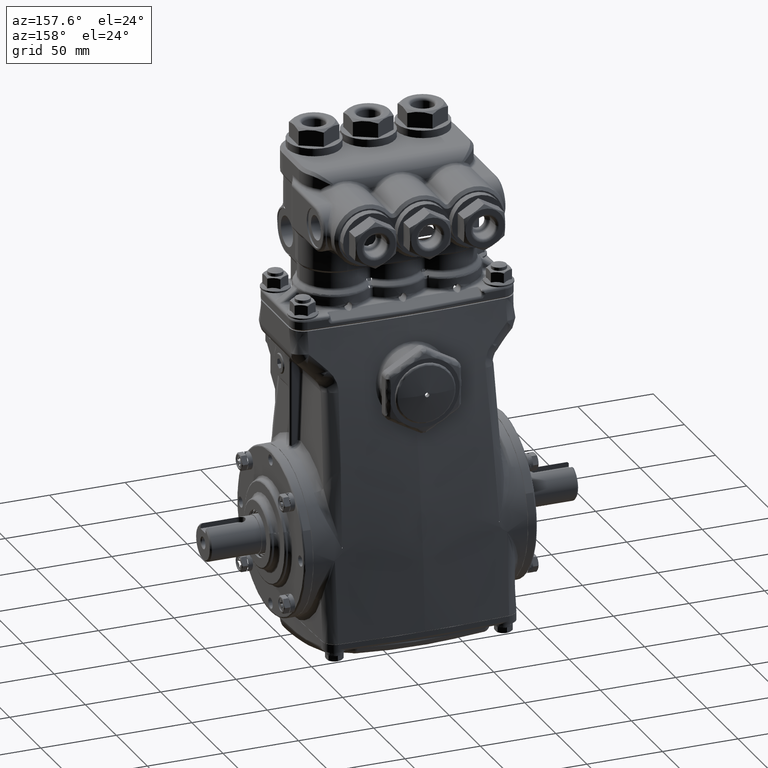
[diagram: clean part render]
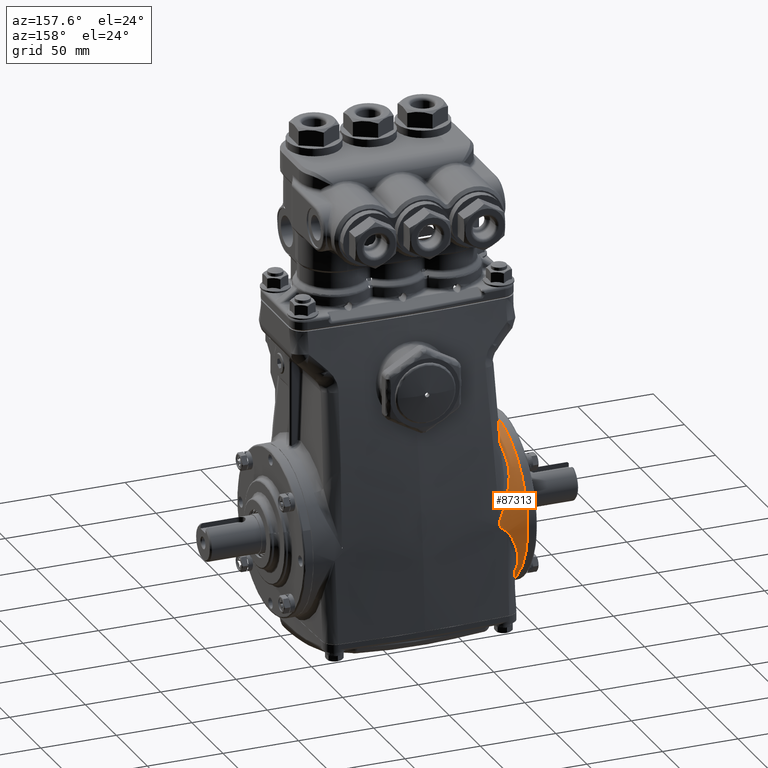
[diagram: same view with one face highlighted and labeled with its STEP entity id]
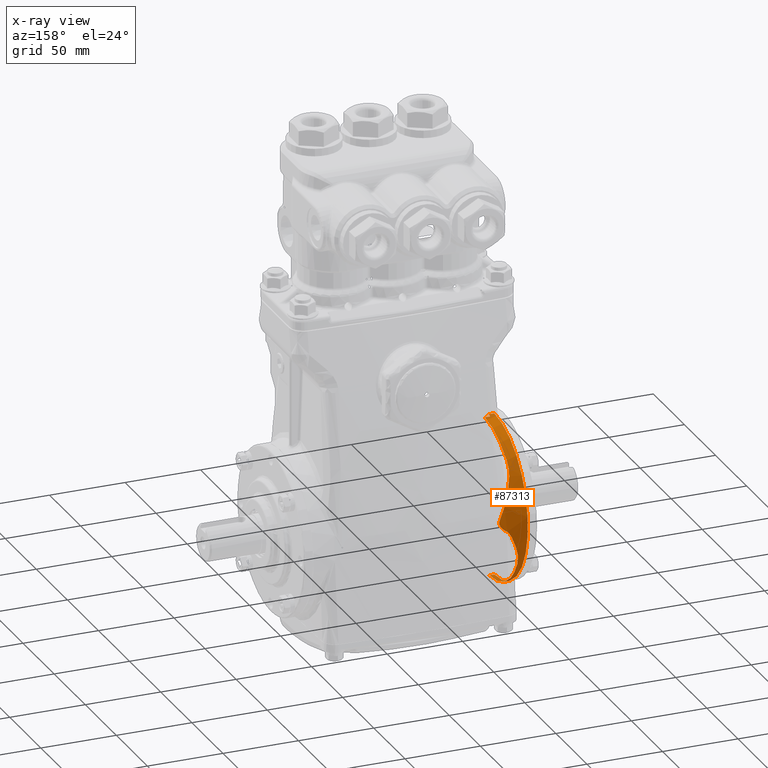
[diagram: x-ray of the same camera — body ghosted, the highlighted face saturated]
A machine part, auxiliary view. The second image highlights one B-rep face of the part: STEP entity #87313.
The next image is the same camera in x-ray: the body ghosted, the highlighted face saturated — about 3% of this face is hidden behind the body in this view.
In plain terms, the highlighted conical surface has half-angle 1.432 deg.
Its self-contained STEP definition (entity closure, byte-faithful):
#49 = CARTESIAN_POINT ( 'NONE',  ( -2.162952424221477266, 2.083565017657989404, 0.4968951659755478367 ) ) ;
#611 = CARTESIAN_POINT ( 'NONE',  ( -2.318538311934954521, 1.973070316823980708, 0.8319326649172116284 ) ) ;
#1801 = CARTESIAN_POINT ( 'NONE',  ( -2.632625855243927671, 1.890380042259838245, -0.9828211631979826279 ) ) ;
#2371 = CARTESIAN_POINT ( 'NONE',  ( -2.289558517188866826, 2.137737940646050383, -0.06239020845379154162 ) ) ;
#2604 = CARTESIAN_POINT ( 'NONE',  ( -2.163951034222194814, 2.141484851680152346, 0.03630347271766833778 ) ) ;
#3164 = CARTESIAN_POINT ( 'NONE',  ( -2.200946752931430161, 2.140926309954696460, 0.006560008790992016663 ) ) ;
#4280 = CARTESIAN_POINT ( 'NONE',  ( -2.070415895278807650, 2.139355094043322580, 0.1433268698002481134 ) ) ;
#4567 = ORIENTED_EDGE ( 'NONE', *, *, #29664, .F. ) ;
#5577 = EDGE_CURVE ( 'NONE', #27048, #43719, #66043, .T. ) ;
#6243 = EDGE_CURVE ( 'NONE', #43719, #89067, #45423, .T. ) ;
#6876 = CARTESIAN_POINT ( 'NONE',  ( -2.512531095173924811, 1.381143595791431977, 1.630352022535442202 ) ) ;
#8578 = CARTESIAN_POINT ( 'NONE',  ( -2.496378292944292365, 0.5612928552407832061, 2.059250695251111374 ) ) ;
#8700 = CARTESIAN_POINT ( 'NONE',  ( -2.551775862697584163, 2.037565885133518329, -0.6294967611463615498 ) ) ;
#9273 = CARTESIAN_POINT ( 'NONE',  ( -2.253474384794850849, 2.139335067782699440, -0.02897014105711796794 ) ) ;
#9309 = ORIENTED_EDGE ( 'NONE', *, *, #66327, .F. ) ;
#11226 = CARTESIAN_POINT ( 'NONE',  ( -2.151930763831655824, 2.141590353209538833, 0.04661990962176179587 ) ) ;
#13088 = CARTESIAN_POINT ( 'NONE',  ( -2.635827106511313023, 1.180994845869163694E-16, 2.129971031623349553 ) ) ;
#13474 = CARTESIAN_POINT ( 'NONE',  ( -2.051070710530038532, 2.128999075677172392, 0.2582607092334724963 ) ) ;
#14318 = CARTESIAN_POINT ( 'NONE',  ( -2.672765217870545218, 0.3692536697095555320, -2.097297288627426592 ) ) ;
#15444 = CARTESIAN_POINT ( 'NONE',  ( -2.669889708392947814, 0.6394416007698479065, -2.032928589424304544 ) ) ;
#16139 = ORIENTED_EDGE ( 'NONE', *, *, #31603, .T. ) ;
#16197 = CARTESIAN_POINT ( 'NONE',  ( -2.384739640711305952, 1.892210327611903553, 0.9933383953743212258 ) ) ;
#16763 = CARTESIAN_POINT ( 'NONE',  ( -2.059568972017451927, 2.125980063762961336, 0.2807006665907317289 ) ) ;
#17328 = CARTESIAN_POINT ( 'NONE',  ( -2.515788031420507664, 1.471742056733628345, 1.543873935989515500 ) ) ;
#17806 = CARTESIAN_POINT ( 'NONE',  ( -2.494717321873239690, 0.3786866166934474975, 2.103354497728250561 ) ) ;
#18278 = LINE ( 'NONE', #63848, #49269 ) ;
#19210 = CARTESIAN_POINT ( 'NONE',  ( -2.637595659439549323, 1.842469967156803001, -1.068593768694690249 ) ) ;
#19241 = FACE_OUTER_BOUND ( 'NONE', #82485, .T. ) ;
#19644 = CARTESIAN_POINT ( 'NONE',  ( -2.389972388588445185, 2.123773769501480668, -0.2303563304776941323 ) ) ;
#21598 = CARTESIAN_POINT ( 'NONE',  ( -2.049233747381173476, 2.135055246015371999, 0.2031275748101670775 ) ) ;
#22027 = EDGE_CURVE ( 'NONE', #76420, #31883, #111137, .T. ) ;
#22164 = CARTESIAN_POINT ( 'NONE',  ( -2.117602679647121011, 2.141476616385341369, 0.07977551856538772634 ) ) ;
#22996 = CARTESIAN_POINT ( 'NONE',  ( -2.645611163643341257, 1.628722084624372402, -1.373017620904652070 ) ) ;
#23572 = CARTESIAN_POINT ( 'NONE',  ( -2.665552481601454637, 0.8971246641472204741, -1.931564028516423281 ) ) ;
#24772 = CARTESIAN_POINT ( 'NONE',  ( -2.498518163271897130, 0.7385959817677200112, 2.002430845912647417 ) ) ;
#24869 = CARTESIAN_POINT ( 'NONE',  ( -2.203292787143160236, 2.060377818088013235, 0.5819543737818714257 ) ) ;
#25448 = CARTESIAN_POINT ( 'NONE',  ( -2.080219982731875916, 2.119245663976616623, 0.3242887612451490487 ) ) ;
#26580 = CARTESIAN_POINT ( 'NONE',  ( -2.517494023435597583, 1.519197775619398838, 1.498576480357006968 ) ) ;
#26608 = CARTESIAN_POINT ( 'NONE',  ( -2.356271691135446655, 2.130658987081584854, -0.1653658590589018873 ) ) ;
#26736 = DIRECTION ( 'NONE',  ( 0.000000000000000000, 5.544652149419485530E-17, 1.000000000000000000 ) ) ;
#27048 = VERTEX_POINT ( 'NONE', #46822 ) ;
#28335 = CARTESIAN_POINT ( 'NONE',  ( -2.400645123650289037, 2.121016825696898422, -0.2522796489681907173 ) ) ;
#28568 = CARTESIAN_POINT ( 'NONE',  ( -2.128748904580759049, 2.141586583927418630, 0.06836013753219859213 ) ) ;
#29664 = EDGE_CURVE ( 'NONE', #89067, #79496, #85354, .T. ) ;
#31603 = EDGE_CURVE ( 'NONE', #31883, #79496, #94869, .T. ) ;
#31883 = VERTEX_POINT ( 'NONE', #91935 ) ;
#32790 = CARTESIAN_POINT ( 'NONE',  ( -2.674213100711846813, 0.09220445916533134834, -2.129011245134119878 ) ) ;
#33429 = CARTESIAN_POINT ( 'NONE',  ( -2.502239974578637671, 0.9649577718154701556, 1.903606377951276629 ) ) ;
#33526 = CARTESIAN_POINT ( 'NONE',  ( -2.189956210657556301, 2.068489951388318815, 0.5537197176874880666 ) ) ;
#33981 = CARTESIAN_POINT ( 'NONE',  ( -2.500193927158772311, 0.8539035844348655813, 1.957934506992622836 ) ) ;
#35133 = CARTESIAN_POINT ( 'NONE',  ( -2.494027162866752523, 0.2561653564590450904, 2.121680388083044377 ) ) ;
#35259 = CARTESIAN_POINT ( 'NONE',  ( -2.590432388134308983, 1.989990240059234861, -0.7629667914849970201 ) ) ;
#35273 = ORIENTED_EDGE ( 'NONE', *, *, #55941, .F. ) ;
#37578 = B_SPLINE_CURVE_WITH_KNOTS ( 'NONE', 3,
 ( #40854, #32790, #59327, #85177, #14318, #94406, #50096, #15444, #101916, #111103, #23572, #39711, #85726, #103614, #67948, #76562, #74875, #110542, #111669, #68515, #92717, #22996, #58758, #49527, #103052, #109979 ),
 .UNSPECIFIED., .F., .F.,
 ( 4, 2, 2, 2, 2, 2, 2, 2, 2, 2, 2, 2, 4 ),
 ( 0.05676191307346302450, 0.06385649279245729504, 0.06740378265195443030, 0.07095107251145155169, 0.07804565223044582223, 0.08159294208994294362, 0.08514023194944006501, 0.09223481166843429391, 0.09932939138742852281, 0.1011030363171770696, 0.1028766812469256442, 0.1064239711064227656, 0.1135185508254169667 ),
 .UNSPECIFIED. ) ;
#37595 = AXIS2_PLACEMENT_3D ( 'NONE', #82530, #65867, #73922 ) ;
#39436 = CARTESIAN_POINT ( 'NONE',  ( -2.053009082777898620, 2.127984562748498121, 0.2659864047022593159 ) ) ;
#39711 = CARTESIAN_POINT ( 'NONE',  ( -2.663862085655700263, 0.9805955468574142353, -1.890604300765717394 ) ) ;
#40854 = CARTESIAN_POINT ( 'NONE',  ( -2.674213100711848590, -4.728579433848398680E-16, -2.129011245134118990 ) ) ;
#42629 = CARTESIAN_POINT ( 'NONE',  ( -2.504496908197115790, 1.073589570473952204, 1.843678885738478934 ) ) ;
#42871 = EDGE_CURVE ( 'NONE', #77149, #60144, #112153, .T. ) ;
#43286 = CARTESIAN_POINT ( 'NONE',  ( -2.066455995131287082, 2.123833213565636147, 0.2952517565246652320 ) ) ;
#43719 = VERTEX_POINT ( 'NONE', #93044 ) ;
#44330 = CARTESIAN_POINT ( 'NONE',  ( -2.506338786346071767, 1.153408163138216924, 1.794772379993768041 ) ) ;
#44457 = CARTESIAN_POINT ( 'NONE',  ( -2.264018022240619210, 2.138978747957120063, -0.03581326159110850837 ) ) ;
#44630 = DIRECTION ( 'NONE',  ( 1.000000000000000000, 0.000000000000000000, -4.382719174871368785E-18 ) ) ;
#45423 = B_SPLINE_CURVE_WITH_KNOTS ( 'NONE', 3,
 ( #112958, #16763, #43286, #25448, #87620, #105497, #53118, #79556, #49, #33526, #24869, #78431, #611, #16197, #51399, #87035, #70930, #88199, #68686, #96258, #103774, #86484, #26580, #17328 ),
 .UNSPECIFIED., .F., .F.,
 ( 4, 2, 2, 2, 2, 2, 2, 2, 2, 2, 2, 4 ),
 ( 0.0005242676182009582252, 0.001761302265535195141, 0.002998336912869430104, 0.005472406207537893960, 0.007946475502206357816, 0.01042054479687481994, 0.02031682197554868924, 0.02526496056488561695, 0.02773902985955408948, 0.03021309915422255854, 0.03516123774355950360, 0.04010937633289644866 ),
 .UNSPECIFIED. ) ;
#46198 = CARTESIAN_POINT ( 'NONE',  ( -2.297234584015314773, 2.137243118489835947, -0.07214601117896257687 ) ) ;
#46427 = CARTESIAN_POINT ( 'NONE',  ( -2.047942761720248583, 2.132668299759482355, 0.2267129716406532658 ) ) ;
#46822 = CARTESIAN_POINT ( 'NONE',  ( -2.253474384794850849, 2.139335067782699440, -0.02897014105711796794 ) ) ;
#46879 = DIRECTION ( 'NONE',  ( -1.000000000000000000, 0.000000000000000000, 4.382719174871368785E-18 ) ) ;
#47551 = CARTESIAN_POINT ( 'NONE',  ( -2.049675535348338684, 2.129977349496798400, 0.2503680299623711192 ) ) ;
#48170 = CARTESIAN_POINT ( 'NONE',  ( -2.515788031420507664, 1.471742056733628345, 1.543873935989515500 ) ) ;
#49269 = VECTOR ( 'NONE', #81634, 39.37007874015748143 ) ;
#49436 = CARTESIAN_POINT ( 'NONE',  ( -2.635827106511313023, 0.1328843788819236149, 2.125821802833859575 ) ) ;
#49527 = CARTESIAN_POINT ( 'NONE',  ( -2.641456466957074145, 1.743588930305946194, -1.226671725202621799 ) ) ;
#50096 = CARTESIAN_POINT ( 'NONE',  ( -2.671478390218202659, 0.5055604446529387008, -2.068700662797995360 ) ) ;
#50731 = CARTESIAN_POINT ( 'NONE',  ( -2.497029492486315672, 0.6211392241596027652, 2.041959402627709252 ) ) ;
#51290 = CARTESIAN_POINT ( 'NONE',  ( -2.503915078908877323, 1.046633739599244439, 1.859127957345694471 ) ) ;
#51399 = CARTESIAN_POINT ( 'NONE',  ( -2.405440990237039944, 1.862727010143194972, 1.046630795474951414 ) ) ;
#53118 = CARTESIAN_POINT ( 'NONE',  ( -2.121747569332262273, 2.103271559763260523, 0.4108664398746768032 ) ) ;
#53722 = CARTESIAN_POINT ( 'NONE',  ( -2.571997670785415746, 2.014805814908271042, -0.6961948022735288122 ) ) ;
#54862 = CARTESIAN_POINT ( 'NONE',  ( -2.318995028254476232, 2.135545963376624723, -0.1021296468091160703 ) ) ;
#55115 = CARTESIAN_POINT ( 'NONE',  ( -2.087339423217606349, 2.140568111131683438, 0.1163468886655521228 ) ) ;
#55941 = EDGE_CURVE ( 'NONE', #96630, #85163, #37578, .T. ) ;
#57357 = CARTESIAN_POINT ( 'NONE',  ( -2.226839771930154033, 2.140235178456946663, -0.01168351989360031859 ) ) ;
#57838 = ORIENTED_EDGE ( 'NONE', *, *, #64034, .T. ) ;
#58306 = ORIENTED_EDGE ( 'NONE', *, *, #67530, .F. ) ;
#58758 = CARTESIAN_POINT ( 'NONE',  ( -2.644558561933787022, 1.658359136561663227, -1.337106508342973399 ) ) ;
#59327 = CARTESIAN_POINT ( 'NONE',  ( -2.673938078400615037, 0.1844786151598803436, -2.123054379433383154 ) ) ;
#59949 = CARTESIAN_POINT ( 'NONE',  ( -2.505708188655874746, 1.126954218850235723, 1.811516318501217304 ) ) ;
#60144 = VERTEX_POINT ( 'NONE', #97500 ) ;
#62362 = CARTESIAN_POINT ( 'NONE',  ( -2.596079569813533272, 1.981135160959059283, -0.7852977795466467015 ) ) ;
#62493 = CARTESIAN_POINT ( 'NONE',  ( -2.795275590551181022, -6.065921084684207584E-32, 0.000000000000000000 ) ) ;
#62938 = CARTESIAN_POINT ( 'NONE',  ( -2.636609844212819631, 1.867263793136128891, -1.025893370523177861 ) ) ;
#63506 = CARTESIAN_POINT ( 'NONE',  ( -2.637595659439549323, 1.842469967156803001, -1.068593768694690249 ) ) ;
#63848 = CARTESIAN_POINT ( 'NONE',  ( -2.795275590551181022, 1.178784315230913598E-16, 2.125984251968504157 ) ) ;
#64034 = EDGE_CURVE ( 'NONE', #77149, #76420, #18278, .T. ) ;
#64079 = CARTESIAN_POINT ( 'NONE',  ( -2.620134399658587299, 1.933471950044749921, -0.8958186313543919921 ) ) ;
#64311 = CARTESIAN_POINT ( 'NONE',  ( -2.096922746239215929, 2.140966567908245466, 0.1037533168227870589 ) ) ;
#65867 = DIRECTION ( 'NONE',  ( -1.000000000000000000, 0.000000000000000000, 4.382719174871368785E-18 ) ) ;
#66043 = B_SPLINE_CURVE_WITH_KNOTS ( 'NONE', 3,
 ( #101086, #57357, #3164, #2604, #11226, #28568, #22164, #64311, #55115, #4280, #109691, #90196, #21598, #46427, #107472, #47551, #13474, #39436 ),
 .UNSPECIFIED., .F., .F.,
 ( 4, 2, 2, 2, 2, 2, 2, 2, 4 ),
 ( 8.080798162022950091E-17, 0.002411326274356013263, 0.003616989411533987585, 0.004822652548711961473, 0.006028315685889935362, 0.007233978823067910117, 0.008439641960245885741, 0.009042473528834872251, 0.009645305097423858762 ),
 .UNSPECIFIED. ) ;
#66327 = EDGE_CURVE ( 'NONE', #85163, #27048, #93260, .T. ) ;
#66629 = CARTESIAN_POINT ( 'NONE',  ( -2.795275590551181022, -3.782364124441823362E-16, -2.125984251968504157 ) ) ;
#66726 = CARTESIAN_POINT ( 'NONE',  ( -2.541100472689935330, 0.1328896408864844447, 2.128194596234617819 ) ) ;
#67530 = EDGE_CURVE ( 'NONE', #60144, #96630, #102864, .T. ) ;
#67948 = CARTESIAN_POINT ( 'NONE',  ( -2.658219563924653972, 1.219976855289391482, -1.747725901029767215 ) ) ;
#68515 = CARTESIAN_POINT ( 'NONE',  ( -2.647743888551647995, 1.566636320473507427, -1.442810299648261241 ) ) ;
#68584 = CARTESIAN_POINT ( 'NONE',  ( -2.493737155654195625, 0.1328922655559541532, 2.129380987956658089 ) ) ;
#68686 = CARTESIAN_POINT ( 'NONE',  ( -2.467062593457126418, 1.744141122210541184, 1.230340150386247666 ) ) ;
#70398 = CARTESIAN_POINT ( 'NONE',  ( -2.460334127482243005, 2.099435925999025176, -0.3851893859959998334 ) ) ;
#70930 = CARTESIAN_POINT ( 'NONE',  ( -2.442660812316131302, 1.797348068771348784, 1.152347434477236643 ) ) ;
#70960 = CARTESIAN_POINT ( 'NONE',  ( -2.504932259691062590, 2.075235465970740822, -0.4962313523408666827 ) ) ;
#72681 = CARTESIAN_POINT ( 'NONE',  ( -2.272927073225366357, 2.138605642037588961, -0.04428091431531905320 ) ) ;
#73922 = DIRECTION ( 'NONE',  ( 0.000000000000000000, 5.544652149419485530E-17, 1.000000000000000000 ) ) ;
#74446 = VECTOR ( 'NONE', #82728, 39.37007874015748143 ) ;
#74875 = CARTESIAN_POINT ( 'NONE',  ( -2.652016088880778888, 1.436109654293630244, -1.575201717937278589 ) ) ;
#75345 = CARTESIAN_POINT ( 'NONE',  ( -2.588463789642438062, 0.1328870120019319812, 2.127008201198832715 ) ) ;
#76420 = VERTEX_POINT ( 'NONE', #13088 ) ;
#76562 = CARTESIAN_POINT ( 'NONE',  ( -2.654131374056228232, 1.366509919037226073, -1.635840865738459105 ) ) ;
#77149 = VERTEX_POINT ( 'NONE', #98968 ) ;
#78431 = CARTESIAN_POINT ( 'NONE',  ( -2.268999988163028281, 2.016935381998909982, 0.7222994757913611119 ) ) ;
#79496 = VERTEX_POINT ( 'NONE', #88211 ) ;
#79556 = CARTESIAN_POINT ( 'NONE',  ( -2.149266100056737905, 2.090535779911462111, 0.4682673622006990333 ) ) ;
#80954 = ORIENTED_EDGE ( 'NONE', *, *, #42871, .F. ) ;
#81634 = DIRECTION ( 'NONE',  ( 0.9996875574981407553, 1.385927240283195653E-18, 0.02499574730631748398 ) ) ;
#82485 = EDGE_LOOP ( 'NONE', ( #58306, #80954, #57838, #112335, #16139, #4567, #111286, #101923, #9309, #35273 ) ) ;
#82530 = CARTESIAN_POINT ( 'NONE',  ( -2.635827106511313023, -6.065921084684207584E-32, 0.000000000000000000 ) ) ;
#82728 = DIRECTION ( 'NONE',  ( 0.9996875574981407553, -4.447023433380974267E-18, -0.02499574730631749092 ) ) ;
#84519 = CARTESIAN_POINT ( 'NONE',  ( -2.493737155654195625, 0.1328922655559541532, 2.129380987956658089 ) ) ;
#85163 = VERTEX_POINT ( 'NONE', #19210 ) ;
#85177 = CARTESIAN_POINT ( 'NONE',  ( -2.673111083534315480, 0.3229975887689998104, -2.104910281018374629 ) ) ;
#85354 = B_SPLINE_CURVE_WITH_KNOTS ( 'NONE', 3,
 ( #88104, #6876, #86379, #44330, #59949, #42629, #51290, #33429, #33981, #24772, #50731, #8578, #17806, #35133, #68584 ),
 .UNSPECIFIED., .F., .F.,
 ( 4, 2, 2, 2, 1, 2, 2, 4 ),
 ( 0.000000000000000000, 0.009505825380862396173, 0.01188228172607799261, 0.01425873807129358906, 0.01901165076172478194, 0.02376456345215597829, 0.02851747614258717117, 0.03802330152344955000 ),
 .UNSPECIFIED. ) ;
#85726 = CARTESIAN_POINT ( 'NONE',  ( -2.662967077234981605, 1.021977778432640482, -1.868586286260956575 ) ) ;
#86379 = CARTESIAN_POINT ( 'NONE',  ( -2.509598941434300734, 1.283714207699584664, 1.708207320038651167 ) ) ;
#86484 = CARTESIAN_POINT ( 'NONE',  ( -2.513853585012319591, 1.563878606752129530, 1.451946259010630902 ) ) ;
#87035 = CARTESIAN_POINT ( 'NONE',  ( -2.433689668383449245, 1.814265325992785893, 1.125936763561403264 ) ) ;
#87313 = ADVANCED_FACE ( 'NONE', ( #19241 ), #107156, .T. ) ;
#87620 = CARTESIAN_POINT ( 'NONE',  ( -2.087143312717087085, 2.116805226615381397, 0.3387596182034674497 ) ) ;
#87647 = CARTESIAN_POINT ( 'NONE',  ( -2.611614131011680051, 1.953446138340607430, -0.8518894944098066579 ) ) ;
#87841 = CARTESIAN_POINT ( 'NONE',  ( -2.795275590551181022, -6.065921084684207584E-32, 0.000000000000000000 ) ) ;
#88104 = CARTESIAN_POINT ( 'NONE',  ( -2.515788031420507664, 1.471742056733628345, 1.543873935989515500 ) ) ;
#88199 = CARTESIAN_POINT ( 'NONE',  ( -2.459356786973228459, 1.762260035235645672, 1.204583766178444648 ) ) ;
#88211 = CARTESIAN_POINT ( 'NONE',  ( -2.493737155654195625, 0.1328922655559541532, 2.129380987956658089 ) ) ;
#88226 = CARTESIAN_POINT ( 'NONE',  ( -2.331842010525637665, 2.134135799984190118, -0.1229999275891138361 ) ) ;
#88801 = CARTESIAN_POINT ( 'NONE',  ( -2.431428662644409489, 2.111296897163809749, -0.3186008543163052487 ) ) ;
#89067 = VERTEX_POINT ( 'NONE', #48170 ) ;
#90196 = CARTESIAN_POINT ( 'NONE',  ( -2.052624549702108059, 2.136410755026618702, 0.1872953730394325000 ) ) ;
#91935 = CARTESIAN_POINT ( 'NONE',  ( -2.635827106511313023, 0.1328843788819236149, 2.125821802833859575 ) ) ;
#92717 = CARTESIAN_POINT ( 'NONE',  ( -2.647207998187497413, 1.582405062089980108, -1.425518607116231573 ) ) ;
#93044 = CARTESIAN_POINT ( 'NONE',  ( -2.053009082777898620, 2.127984562748498121, 0.2659864047022593159 ) ) ;
#93260 = B_SPLINE_CURVE_WITH_KNOTS ( 'NONE', 3,
 ( #63506, #62938, #1801, #64079, #87647, #62362, #35259, #98015, #53722, #8700, #99158, #70960, #106090, #70398, #96876, #88801, #107238, #28335, #19644, #105524, #26608, #88226, #54862, #46198, #2371, #72681, #44457, #9273 ),
 .UNSPECIFIED., .F., .F.,
 ( 4, 2, 2, 2, 2, 2, 2, 2, 2, 2, 2, 2, 2, 4 ),
 ( 0.000000000000000000, 0.003729478340027125426, 0.007458956680054250853, 0.009323695850067814650, 0.01118843502008137585, 0.01491791336010850171, 0.01864739170013562930, 0.02051213087014919570, 0.02237687004016275863, 0.02424160921017632503, 0.02610634838018989143, 0.02797108755020345783, 0.02890345713521023582, 0.02983582672021701035 ),
 .UNSPECIFIED. ) ;
#94406 = CARTESIAN_POINT ( 'NONE',  ( -2.671949241928070595, 0.4604519964451416758, -2.079200573250728823 ) ) ;
#94869 = B_SPLINE_CURVE_WITH_KNOTS ( 'NONE', 3,
 ( #49436, #75345, #66726, #84519 ),
 .UNSPECIFIED., .F., .F.,
 ( 4, 4 ),
 ( 0.000000000000000000, 0.003610216827647214945 ),
 .UNSPECIFIED. ) ;
#96258 = CARTESIAN_POINT ( 'NONE',  ( -2.488017827612573285, 1.688032755309610833, 1.306544832349329388 ) ) ;
#96630 = VERTEX_POINT ( 'NONE', #102688 ) ;
#96876 = CARTESIAN_POINT ( 'NONE',  ( -2.450903707374337159, 2.103626349546162011, -0.3629850883206079959 ) ) ;
#97500 = CARTESIAN_POINT ( 'NONE',  ( -2.795275590551181022, -3.799102800271908455E-16, -2.125984251968504157 ) ) ;
#98015 = CARTESIAN_POINT ( 'NONE',  ( -2.578396526791719712, 2.006815403867231229, -0.7184387052893077552 ) ) ;
#98968 = CARTESIAN_POINT ( 'NONE',  ( -2.795275590551181022, 1.178784315230913598E-16, 2.125984251968504157 ) ) ;
#99158 = CARTESIAN_POINT ( 'NONE',  ( -2.536936585567988622, 2.051127212928969712, -0.5850738871081627712 ) ) ;
#99288 = AXIS2_PLACEMENT_3D ( 'NONE', #62493, #46879, #26736 ) ;
#101086 = CARTESIAN_POINT ( 'NONE',  ( -2.253474384794850849, 2.139335067782699440, -0.02897014105711796794 ) ) ;
#101916 = CARTESIAN_POINT ( 'NONE',  ( -2.668595733800589898, 0.7267760914884860979, -2.003401781462314624 ) ) ;
#101923 = ORIENTED_EDGE ( 'NONE', *, *, #5577, .F. ) ;
#102688 = CARTESIAN_POINT ( 'NONE',  ( -2.674213100711848590, -4.728579433848398680E-16, -2.129011245134118990 ) ) ;
#102864 = LINE ( 'NONE', #66629, #74446 ) ;
#103052 = CARTESIAN_POINT ( 'NONE',  ( -2.639462562493321673, 1.795516270175573359, -1.149458317731812507 ) ) ;
#103614 = CARTESIAN_POINT ( 'NONE',  ( -2.660192766900450589, 1.143043784224609061, -1.798972107766665607 ) ) ;
#103774 = CARTESIAN_POINT ( 'NONE',  ( -2.499135386112825596, 1.648299130417571812, 1.355929305872067836 ) ) ;
#105497 = CARTESIAN_POINT ( 'NONE',  ( -2.107907215706401605, 2.109039939566985211, 0.3820906069614397604 ) ) ;
#105524 = CARTESIAN_POINT ( 'NONE',  ( -2.367778985389837665, 2.128595150432312622, -0.1869031318643764594 ) ) ;
#105705 = DIRECTION ( 'NONE',  ( 0.000000000000000000, 5.544652149419485530E-17, 1.000000000000000000 ) ) ;
#106090 = CARTESIAN_POINT ( 'NONE',  ( -2.487770655296931199, 2.085781194500540447, -0.4518101348641363479 ) ) ;
#107156 = CONICAL_SURFACE ( 'NONE', #108945, 2.125984251968504157, 0.02499835087631483571 ) ;
#107238 = CARTESIAN_POINT ( 'NONE',  ( -2.421371347913226835, 2.114780403209817194, -0.2963912768903275707 ) ) ;
#107472 = CARTESIAN_POINT ( 'NONE',  ( -2.048115291841310359, 2.131812174327038178, 0.2345886730875641479 ) ) ;
#108945 = AXIS2_PLACEMENT_3D ( 'NONE', #87841, #44630, #105705 ) ;
#109691 = CARTESIAN_POINT ( 'NONE',  ( -2.063207345101013779, 2.138543991902458252, 0.1575601654328049883 ) ) ;
#109979 = CARTESIAN_POINT ( 'NONE',  ( -2.637595659439549323, 1.842469967156803001, -1.068593768694690249 ) ) ;
#110542 = CARTESIAN_POINT ( 'NONE',  ( -2.649348531413402874, 1.518427305832896090, -1.493403393543848212 ) ) ;
#111103 = CARTESIAN_POINT ( 'NONE',  ( -2.666351239691660435, 0.8548985500815410310, -1.950591760190255597 ) ) ;
#111137 = CIRCLE ( 'NONE', #37595, 2.129971031623349553 ) ;
#111286 = ORIENTED_EDGE ( 'NONE', *, *, #6243, .F. ) ;
#111669 = CARTESIAN_POINT ( 'NONE',  ( -2.648813858086076944, 1.534655793872980123, -1.476742552362692695 ) ) ;
#112153 = CIRCLE ( 'NONE', #99288, 2.125984251968504157 ) ;
#112335 = ORIENTED_EDGE ( 'NONE', *, *, #22027, .T. ) ;
#112958 = CARTESIAN_POINT ( 'NONE',  ( -2.053009082777898620, 2.127984562748498121, 0.2659864047022593159 ) ) ;